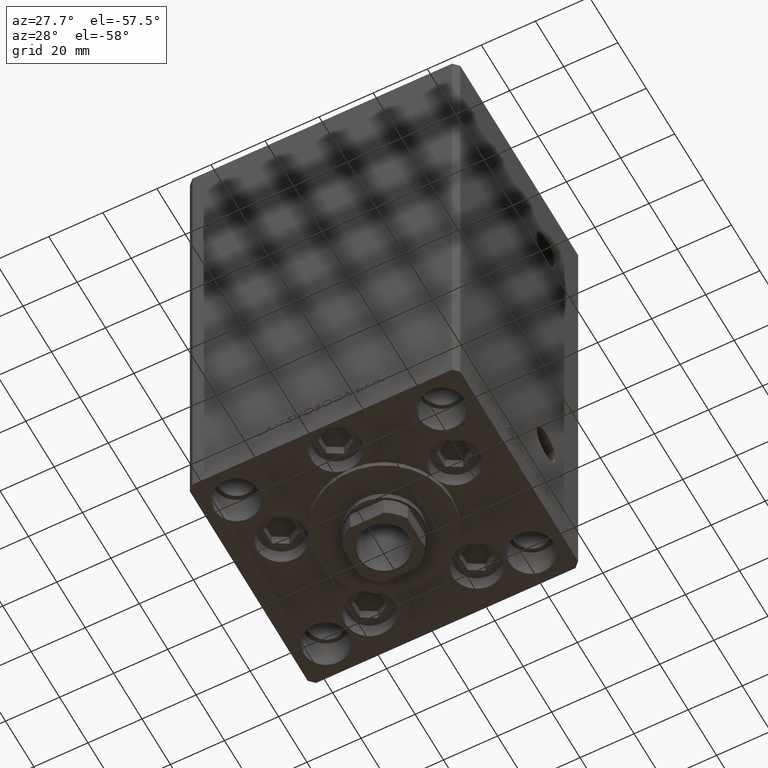
[diagram: clean part render]
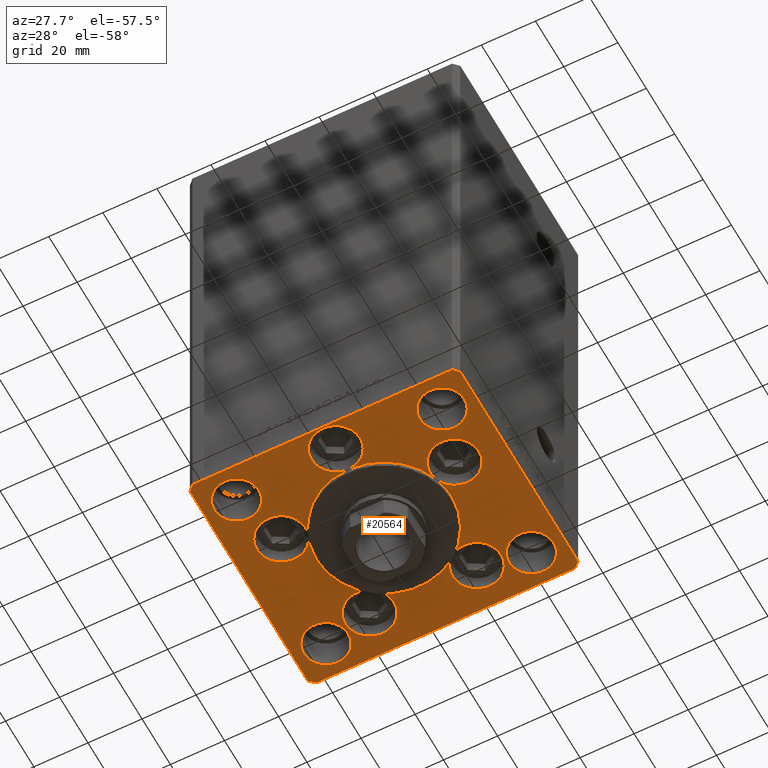
[diagram: same view with one face highlighted and labeled with its STEP entity id]
A machine part, auxiliary view. The second image highlights one B-rep face of the part: STEP entity #20564.
In plain terms, the highlighted planar face has unit normal (0, 0, -1).
Its self-contained STEP definition (entity closure, byte-faithful):
#121 = PLANE ( 'NONE',  #38288 ) ;
#170 = EDGE_CURVE ( 'NONE', #13335, #32109, #27916, .T. ) ;
#311 = CARTESIAN_POINT ( 'NONE',  ( 14.57402977045128623, 20.31249999999998579, 0.000000000000000000 ) ) ;
#484 = EDGE_CURVE ( 'NONE', #26941, #23557, #24707, .T. ) ;
#623 = FACE_BOUND ( 'NONE', #6814, .T. ) ;
#727 = AXIS2_PLACEMENT_3D ( 'NONE', #815, #39679, #16107 ) ;
#815 = CARTESIAN_POINT ( 'NONE',  ( 0.000000000000000000, -6.938893903907228378E-15, 0.000000000000000000 ) ) ;
#858 = VERTEX_POINT ( 'NONE', #15331 ) ;
#1037 = EDGE_CURVE ( 'NONE', #7361, #41626, #12675, .T. ) ;
#1084 = CARTESIAN_POINT ( 'NONE',  ( 10.82068048781375147, 27.62499999999998934, 0.000000000000000000 ) ) ;
#1092 = DIRECTION ( 'NONE',  ( 0.000000000000000000, 0.000000000000000000, 1.000000000000000000 ) ) ;
#1310 = VERTEX_POINT ( 'NONE', #3853 ) ;
#1329 = EDGE_CURVE ( 'NONE', #30418, #31856, #37559, .T. ) ;
#1381 = CIRCLE ( 'NONE', #27817, 9.000000000000001776 ) ;
#1537 = DIRECTION ( 'NONE',  ( 1.000000000000000000, 0.000000000000000000, 0.000000000000000000 ) ) ;
#1788 = DIRECTION ( 'NONE',  ( 0.000000000000000000, 1.000000000000000000, 0.000000000000000000 ) ) ;
#2157 = CARTESIAN_POINT ( 'NONE',  ( -48.00000000000000711, -43.50000000000002842, 0.000000000000000000 ) ) ;
#2173 = DIRECTION ( 'NONE',  ( 1.000000000000000000, 0.000000000000000000, 0.000000000000000000 ) ) ;
#2362 = DIRECTION ( 'NONE',  ( 0.000000000000000000, 0.000000000000000000, 1.000000000000000000 ) ) ;
#2425 = EDGE_CURVE ( 'NONE', #1310, #45627, #45580, .T. ) ;
#2619 = ORIENTED_EDGE ( 'NONE', *, *, #49554, .T. ) ;
#3023 = DIRECTION ( 'NONE',  ( 0.000000000000000000, 0.000000000000000000, 1.000000000000000000 ) ) ;
#3178 = CARTESIAN_POINT ( 'NONE',  ( -38.00000000000000000, 31.50000000000000000, 0.000000000000000000 ) ) ;
#3411 = CARTESIAN_POINT ( 'NONE',  ( 0.000000000000000000, -34.00000000000000000, 0.000000000000000000 ) ) ;
#3466 = VERTEX_POINT ( 'NONE', #45871 ) ;
#3620 = EDGE_CURVE ( 'NONE', #21723, #40940, #25762, .T. ) ;
#3853 = CARTESIAN_POINT ( 'NONE',  ( -28.82068048781374969, 27.62499999999998934, 0.000000000000000000 ) ) ;
#4018 = CARTESIAN_POINT ( 'NONE',  ( -14.57402977045128978, 20.31249999999999289, 0.000000000000000000 ) ) ;
#4030 = AXIS2_PLACEMENT_3D ( 'NONE', #3178, #29787, #13071 ) ;
#4208 = DIRECTION ( 'NONE',  ( 1.000000000000000000, 0.000000000000000000, 0.000000000000000000 ) ) ;
#4339 = CARTESIAN_POINT ( 'NONE',  ( 25.00000000000000000, -3.877276906038844941E-15, 0.000000000000000000 ) ) ;
#4352 = DIRECTION ( 'NONE',  ( 0.000000000000000000, 0.000000000000000000, 1.000000000000000000 ) ) ;
#4465 = ORIENTED_EDGE ( 'NONE', *, *, #35065, .F. ) ;
#4828 = CARTESIAN_POINT ( 'NONE',  ( 29.75000000000001066, -31.50000000000000711, 0.000000000000000000 ) ) ;
#4853 = CARTESIAN_POINT ( 'NONE',  ( 38.00000000000000711, -31.50000000000000711, 0.000000000000000000 ) ) ;
#5016 = CARTESIAN_POINT ( 'NONE',  ( -50.00000000000000000, -41.50000000000004263, 0.000000000000000000 ) ) ;
#5026 = EDGE_LOOP ( 'NONE', ( #24011, #29566 ) ) ;
#5066 = DIRECTION ( 'NONE',  ( 0.000000000000000000, 0.000000000000000000, 1.000000000000000000 ) ) ;
#5069 = EDGE_CURVE ( 'NONE', #40940, #34825, #28198, .T. ) ;
#5219 = ORIENTED_EDGE ( 'NONE', *, *, #11802, .F. ) ;
#5261 = CARTESIAN_POINT ( 'NONE',  ( -23.57022603955158502, -8.333333333333332149, 0.000000000000000000 ) ) ;
#5386 = EDGE_CURVE ( 'NONE', #8602, #11505, #16865, .T. ) ;
#5413 = EDGE_CURVE ( 'NONE', #42553, #26941, #32885, .T. ) ;
#5559 = CIRCLE ( 'NONE', #727, 25.00000000000000000 ) ;
#5695 = ORIENTED_EDGE ( 'NONE', *, *, #20351, .F. ) ;
#5754 = CIRCLE ( 'NONE', #16183, 9.000000000000000000 ) ;
#5768 = AXIS2_PLACEMENT_3D ( 'NONE', #32376, #44642, #14045 ) ;
#5913 = AXIS2_PLACEMENT_3D ( 'NONE', #41438, #10347, #15090 ) ;
#5976 = DIRECTION ( 'NONE',  ( 1.000000000000000000, 1.156482317317871331E-15, 0.000000000000000000 ) ) ;
#6206 = DIRECTION ( 'NONE',  ( 1.000000000000000000, 0.000000000000000000, 0.000000000000000000 ) ) ;
#6233 = CIRCLE ( 'NONE', #31780, 8.249999999999992895 ) ;
#6439 = CARTESIAN_POINT ( 'NONE',  ( 50.00000000000000000, -41.49999999999992895, 0.000000000000000000 ) ) ;
#6795 = AXIS2_PLACEMENT_3D ( 'NONE', #37397, #3023, #4208 ) ;
#6801 = CIRCLE ( 'NONE', #41253, 9.000000000000001776 ) ;
#6814 = EDGE_LOOP ( 'NONE', ( #14066, #48446, #33516, #46403, #39758, #44490, #16746, #38961, #37222, #21918, #30558, #18650, #8520, #5219, #17185, #44079, #14395, #33445, #4465, #13281, #49303, #5695 ) ) ;
#6931 = DIRECTION ( 'NONE',  ( 0.000000000000000000, 0.000000000000000000, 1.000000000000000000 ) ) ;
#7022 = AXIS2_PLACEMENT_3D ( 'NONE', #35903, #5066, #24135 ) ;
#7361 = VERTEX_POINT ( 'NONE', #36221 ) ;
#7660 = DIRECTION ( 'NONE',  ( 0.000000000000000000, 0.000000000000000000, 1.000000000000000000 ) ) ;
#7958 = CARTESIAN_POINT ( 'NONE',  ( -9.000000000000000000, -34.00000000000000000, 0.000000000000000000 ) ) ;
#8022 = DIRECTION ( 'NONE',  ( 1.000000000000000000, 0.000000000000000000, 0.000000000000000000 ) ) ;
#8520 = ORIENTED_EDGE ( 'NONE', *, *, #29264, .F. ) ;
#8602 = VERTEX_POINT ( 'NONE', #15593 ) ;
#8619 = DIRECTION ( 'NONE',  ( -1.000000000000000000, -2.891205793294678326E-16, 0.000000000000000000 ) ) ;
#8717 = DIRECTION ( 'NONE',  ( 0.000000000000000000, 0.000000000000000000, 1.000000000000000000 ) ) ;
#9262 = VERTEX_POINT ( 'NONE', #36456 ) ;
#9496 = CIRCLE ( 'NONE', #44766, 9.000000000000001776 ) ;
#9511 = ORIENTED_EDGE ( 'NONE', *, *, #41630, .F. ) ;
#9924 = EDGE_CURVE ( 'NONE', #22101, #1310, #5754, .T. ) ;
#10236 = CARTESIAN_POINT ( 'NONE',  ( 0.000000000000000000, -6.938893903907228378E-15, 0.000000000000000000 ) ) ;
#10347 = DIRECTION ( 'NONE',  ( 0.000000000000000000, 0.000000000000000000, 1.000000000000000000 ) ) ;
#10646 = DIRECTION ( 'NONE',  ( 0.000000000000000000, 0.000000000000000000, 1.000000000000000000 ) ) ;
#10709 = VERTEX_POINT ( 'NONE', #7958 ) ;
#11033 = CIRCLE ( 'NONE', #7022, 8.250000000000000000 ) ;
#11140 = DIRECTION ( 'NONE',  ( 0.000000000000000000, 0.000000000000000000, 1.000000000000000000 ) ) ;
#11372 = VERTEX_POINT ( 'NONE', #4828 ) ;
#11415 = FACE_BOUND ( 'NONE', #13766, .T. ) ;
#11463 = CIRCLE ( 'NONE', #23506, 8.249999999999992895 ) ;
#11505 = VERTEX_POINT ( 'NONE', #30362 ) ;
#11565 = EDGE_CURVE ( 'NONE', #39714, #7361, #27481, .T. ) ;
#11718 = DIRECTION ( 'NONE',  ( 1.000000000000000000, 0.000000000000000000, 0.000000000000000000 ) ) ;
#11802 = EDGE_CURVE ( 'NONE', #41626, #9262, #21865, .T. ) ;
#12170 = CARTESIAN_POINT ( 'NONE',  ( 0.000000000000000000, 0.000000000000000000, 0.000000000000000000 ) ) ;
#12194 = AXIS2_PLACEMENT_3D ( 'NONE', #25841, #49499, #18804 ) ;
#12197 = EDGE_CURVE ( 'NONE', #34366, #3466, #14635, .T. ) ;
#12223 = CARTESIAN_POINT ( 'NONE',  ( -48.00000000000000000, 43.49999999999997158, 0.000000000000000000 ) ) ;
#12414 = FACE_BOUND ( 'NONE', #36497, .T. ) ;
#12550 = ORIENTED_EDGE ( 'NONE', *, *, #46331, .F. ) ;
#12616 = CARTESIAN_POINT ( 'NONE',  ( 0.000000000000000000, -6.938893903907228378E-15, 0.000000000000000000 ) ) ;
#12664 = VERTEX_POINT ( 'NONE', #23591 ) ;
#12675 = CIRCLE ( 'NONE', #47127, 9.000000000000001776 ) ;
#13065 = CARTESIAN_POINT ( 'NONE',  ( -29.75000000000000711, -31.50000000000000711, 0.000000000000000000 ) ) ;
#13071 = DIRECTION ( 'NONE',  ( 1.000000000000000000, 0.000000000000000000, 0.000000000000000000 ) ) ;
#13281 = ORIENTED_EDGE ( 'NONE', *, *, #2425, .F. ) ;
#13335 = VERTEX_POINT ( 'NONE', #16439 ) ;
#13484 = VECTOR ( 'NONE', #38052, 1000.000000000000000 ) ;
#13730 = DIRECTION ( 'NONE',  ( 0.000000000000000000, 0.000000000000000000, 1.000000000000000000 ) ) ;
#13766 = EDGE_LOOP ( 'NONE', ( #12550, #30796 ) ) ;
#13925 = EDGE_CURVE ( 'NONE', #30922, #858, #33816, .T. ) ;
#14045 = DIRECTION ( 'NONE',  ( 1.000000000000000000, 0.000000000000000000, 0.000000000000000000 ) ) ;
#14066 = ORIENTED_EDGE ( 'NONE', *, *, #35139, .F. ) ;
#14277 = VECTOR ( 'NONE', #34929, 1000.000000000000000 ) ;
#14384 = VECTOR ( 'NONE', #25255, 999.9999999999998863 ) ;
#14395 = ORIENTED_EDGE ( 'NONE', *, *, #45474, .F. ) ;
#14443 = VERTEX_POINT ( 'NONE', #38922 ) ;
#14635 = CIRCLE ( 'NONE', #23493, 8.250000000000000000 ) ;
#15090 = DIRECTION ( 'NONE',  ( 1.000000000000000000, 0.000000000000000000, 0.000000000000000000 ) ) ;
#15331 = CARTESIAN_POINT ( 'NONE',  ( 46.25000000000000000, 31.50000000000000000, 0.000000000000000000 ) ) ;
#15447 = DIRECTION ( 'NONE',  ( 1.000000000000000000, 0.000000000000000000, 0.000000000000000000 ) ) ;
#15469 = CARTESIAN_POINT ( 'NONE',  ( -41.05550741379015989, -11.33333333333332682, 0.000000000000000000 ) ) ;
#15593 = CARTESIAN_POINT ( 'NONE',  ( -46.25000000000000000, 31.50000000000000000, 0.000000000000000000 ) ) ;
#15755 = CARTESIAN_POINT ( 'NONE',  ( 0.000000000000000000, -34.00000000000000000, 0.000000000000000000 ) ) ;
#15932 = AXIS2_PLACEMENT_3D ( 'NONE', #45507, #11140, #26449 ) ;
#15968 = AXIS2_PLACEMENT_3D ( 'NONE', #35891, #36390, #1537 ) ;
#16107 = DIRECTION ( 'NONE',  ( 1.000000000000000000, 0.000000000000000000, 0.000000000000000000 ) ) ;
#16173 = DIRECTION ( 'NONE',  ( -0.000000000000000000, 0.000000000000000000, 1.000000000000000000 ) ) ;
#16183 = AXIS2_PLACEMENT_3D ( 'NONE', #45340, #48360, #41087 ) ;
#16439 = CARTESIAN_POINT ( 'NONE',  ( -50.00000000000000711, 41.49999999999999289, 0.000000000000000000 ) ) ;
#16746 = ORIENTED_EDGE ( 'NONE', *, *, #22772, .F. ) ;
#16865 = CIRCLE ( 'NONE', #4030, 8.250000000000000000 ) ;
#16868 = DIRECTION ( 'NONE',  ( 0.000000000000000000, 0.000000000000000000, 1.000000000000000000 ) ) ;
#16890 = CARTESIAN_POINT ( 'NONE',  ( 47.99999999999999289, 43.50000000000000000, 0.000000000000000000 ) ) ;
#17092 = AXIS2_PLACEMENT_3D ( 'NONE', #15755, #46361, #2173 ) ;
#17185 = ORIENTED_EDGE ( 'NONE', *, *, #1037, .F. ) ;
#17523 = DIRECTION ( 'NONE',  ( 1.000000000000000000, 0.000000000000000000, 0.000000000000000000 ) ) ;
#17798 = CIRCLE ( 'NONE', #12194, 25.00000000000000000 ) ;
#18002 = EDGE_CURVE ( 'NONE', #30418, #12664, #1381, .T. ) ;
#18028 = DIRECTION ( 'NONE',  ( 0.000000000000000000, 0.000000000000000000, 1.000000000000000000 ) ) ;
#18471 = CARTESIAN_POINT ( 'NONE',  ( -25.00000000000000000, -6.938893903907228378E-15, 0.000000000000000000 ) ) ;
#18650 = ORIENTED_EDGE ( 'NONE', *, *, #36703, .F. ) ;
#18655 = AXIS2_PLACEMENT_3D ( 'NONE', #26612, #42396, #8022 ) ;
#18804 = DIRECTION ( 'NONE',  ( 1.000000000000000000, 0.000000000000000000, 0.000000000000000000 ) ) ;
#19958 = CARTESIAN_POINT ( 'NONE',  ( 0.000000000000000000, -6.938893903907228378E-15, 0.000000000000000000 ) ) ;
#20082 = EDGE_CURVE ( 'NONE', #11505, #8602, #11033, .T. ) ;
#20351 = EDGE_CURVE ( 'NONE', #45627, #22101, #48665, .T. ) ;
#20420 = EDGE_CURVE ( 'NONE', #44937, #25517, #29064, .T. ) ;
#20564 = ADVANCED_FACE ( 'NONE', ( #623, #31227, #46527, #12414, #11415, #34479 ), #121, .T. ) ;
#21057 = CARTESIAN_POINT ( 'NONE',  ( -10.82068048781375147, 27.62499999999998934, 0.000000000000000000 ) ) ;
#21154 = CARTESIAN_POINT ( 'NONE',  ( -48.00000000000000000, 43.49999999999997158, 0.000000000000000000 ) ) ;
#21171 = ORIENTED_EDGE ( 'NONE', *, *, #41964, .T. ) ;
#21192 = CARTESIAN_POINT ( 'NONE',  ( 19.82068048781374969, 27.62499999999998934, 0.000000000000000000 ) ) ;
#21293 = DIRECTION ( 'NONE',  ( 1.000000000000000000, 0.000000000000000000, 0.000000000000000000 ) ) ;
#21466 = EDGE_CURVE ( 'NONE', #25517, #41918, #31288, .T. ) ;
#21486 = CARTESIAN_POINT ( 'NONE',  ( -50.00000000000000000, -41.50000000000004263, 0.000000000000000000 ) ) ;
#21723 = VERTEX_POINT ( 'NONE', #39932 ) ;
#21865 = CIRCLE ( 'NONE', #37879, 25.00000000000000000 ) ;
#21918 = ORIENTED_EDGE ( 'NONE', *, *, #26626, .F. ) ;
#22055 = CARTESIAN_POINT ( 'NONE',  ( 28.82068048781374969, 27.62499999999998934, 0.000000000000000000 ) ) ;
#22101 = VERTEX_POINT ( 'NONE', #21057 ) ;
#22365 = EDGE_CURVE ( 'NONE', #14443, #9262, #23944, .T. ) ;
#22772 = EDGE_CURVE ( 'NONE', #30687, #30418, #9496, .T. ) ;
#23493 = AXIS2_PLACEMENT_3D ( 'NONE', #29752, #7660, #34004 ) ;
#23506 = AXIS2_PLACEMENT_3D ( 'NONE', #25955, #10646, #41248 ) ;
#23557 = VERTEX_POINT ( 'NONE', #311 ) ;
#23567 = EDGE_CURVE ( 'NONE', #31856, #23557, #5559, .T. ) ;
#23591 = CARTESIAN_POINT ( 'NONE',  ( 23.05550741379015633, -11.33333333333332682, 0.000000000000000000 ) ) ;
#23632 = LINE ( 'NONE', #46948, #33873 ) ;
#23944 = CIRCLE ( 'NONE', #34343, 9.000000000000000000 ) ;
#24011 = ORIENTED_EDGE ( 'NONE', *, *, #38507, .F. ) ;
#24089 = VERTEX_POINT ( 'NONE', #37580 ) ;
#24135 = DIRECTION ( 'NONE',  ( 1.000000000000000000, 0.000000000000000000, 0.000000000000000000 ) ) ;
#24304 = CARTESIAN_POINT ( 'NONE',  ( 32.05550741379015989, -11.33333333333332860, 0.000000000000000000 ) ) ;
#24441 = CIRCLE ( 'NONE', #31657, 8.250000000000000000 ) ;
#24707 = CIRCLE ( 'NONE', #39922, 8.999999999999998224 ) ;
#24842 = CARTESIAN_POINT ( 'NONE',  ( 19.82068048781374969, 27.62499999999998934, 0.000000000000000000 ) ) ;
#24865 = EDGE_LOOP ( 'NONE', ( #44677, #44195 ) ) ;
#24976 = DIRECTION ( 'NONE',  ( 0.000000000000000000, 0.000000000000000000, 1.000000000000000000 ) ) ;
#25255 = DIRECTION ( 'NONE',  ( -0.7071067811865512365, 0.7071067811865439090, 0.000000000000000000 ) ) ;
#25306 = CARTESIAN_POINT ( 'NONE',  ( -38.00000000000000711, -31.50000000000000711, 0.000000000000000000 ) ) ;
#25324 = DIRECTION ( 'NONE',  ( 0.000000000000000000, 0.000000000000000000, 1.000000000000000000 ) ) ;
#25517 = VERTEX_POINT ( 'NONE', #46544 ) ;
#25762 = LINE ( 'NONE', #41060, #14384 ) ;
#25802 = ORIENTED_EDGE ( 'NONE', *, *, #21466, .T. ) ;
#25841 = CARTESIAN_POINT ( 'NONE',  ( 0.000000000000000000, -6.938893903907228378E-15, 0.000000000000000000 ) ) ;
#25955 = CARTESIAN_POINT ( 'NONE',  ( 38.00000000000000711, -31.50000000000000711, 0.000000000000000000 ) ) ;
#26011 = DIRECTION ( 'NONE',  ( 0.000000000000000000, 0.000000000000000000, 1.000000000000000000 ) ) ;
#26036 = VECTOR ( 'NONE', #48085, 1000.000000000000000 ) ;
#26449 = DIRECTION ( 'NONE',  ( 1.000000000000000000, 0.000000000000000000, 0.000000000000000000 ) ) ;
#26533 = DIRECTION ( 'NONE',  ( 0.000000000000000000, 0.000000000000000000, 1.000000000000000000 ) ) ;
#26612 = CARTESIAN_POINT ( 'NONE',  ( -32.05550741379015989, -11.33333333333332860, 0.000000000000000000 ) ) ;
#26621 = CIRCLE ( 'NONE', #5768, 25.00000000000000000 ) ;
#26626 = EDGE_CURVE ( 'NONE', #9262, #30418, #42520, .T. ) ;
#26941 = VERTEX_POINT ( 'NONE', #1084 ) ;
#27081 = VECTOR ( 'NONE', #42836, 1000.000000000000114 ) ;
#27378 = EDGE_LOOP ( 'NONE', ( #21171, #32732, #25802, #32178, #37399, #37025, #2619, #40874 ) ) ;
#27481 = CIRCLE ( 'NONE', #18655, 9.000000000000001776 ) ;
#27483 = DIRECTION ( 'NONE',  ( 1.000000000000000000, 0.000000000000000000, 0.000000000000000000 ) ) ;
#27562 = CIRCLE ( 'NONE', #5913, 8.250000000000000000 ) ;
#27817 = AXIS2_PLACEMENT_3D ( 'NONE', #24304, #13730, #6206 ) ;
#27887 = VECTOR ( 'NONE', #5976, 1000.000000000000000 ) ;
#27895 = CIRCLE ( 'NONE', #47000, 25.00000000000000000 ) ;
#27916 = LINE ( 'NONE', #35913, #14277 ) ;
#28089 = DIRECTION ( 'NONE',  ( 1.000000000000000000, 0.000000000000000000, 0.000000000000000000 ) ) ;
#28198 = LINE ( 'NONE', #16890, #29651 ) ;
#28945 = CARTESIAN_POINT ( 'NONE',  ( 29.74999999999999645, 31.50000000000000000, 0.000000000000000000 ) ) ;
#29050 = CIRCLE ( 'NONE', #17092, 9.000000000000000000 ) ;
#29064 = LINE ( 'NONE', #49045, #27887 ) ;
#29264 = EDGE_CURVE ( 'NONE', #9262, #10709, #48162, .T. ) ;
#29275 = VERTEX_POINT ( 'NONE', #18471 ) ;
#29518 = DIRECTION ( 'NONE',  ( 1.000000000000000000, 0.000000000000000000, 0.000000000000000000 ) ) ;
#29566 = ORIENTED_EDGE ( 'NONE', *, *, #13925, .F. ) ;
#29651 = VECTOR ( 'NONE', #8619, 1000.000000000000000 ) ;
#29752 = CARTESIAN_POINT ( 'NONE',  ( -38.00000000000000711, -31.50000000000000711, 0.000000000000000000 ) ) ;
#29787 = DIRECTION ( 'NONE',  ( 0.000000000000000000, 0.000000000000000000, 1.000000000000000000 ) ) ;
#30160 = AXIS2_PLACEMENT_3D ( 'NONE', #36656, #16868, #47956 ) ;
#30288 = CARTESIAN_POINT ( 'NONE',  ( 32.05550741379015989, -11.33333333333332860, 0.000000000000000000 ) ) ;
#30362 = CARTESIAN_POINT ( 'NONE',  ( -29.75000000000000000, 31.50000000000000000, 0.000000000000000000 ) ) ;
#30418 = VERTEX_POINT ( 'NONE', #34209 ) ;
#30558 = ORIENTED_EDGE ( 'NONE', *, *, #22365, .F. ) ;
#30687 = VERTEX_POINT ( 'NONE', #42929 ) ;
#30796 = ORIENTED_EDGE ( 'NONE', *, *, #37214, .F. ) ;
#30922 = VERTEX_POINT ( 'NONE', #28945 ) ;
#30984 = DIRECTION ( 'NONE',  ( 1.000000000000000000, 0.000000000000000000, 0.000000000000000000 ) ) ;
#31227 = FACE_BOUND ( 'NONE', #5026, .T. ) ;
#31274 = LINE ( 'NONE', #12223, #13484 ) ;
#31288 = LINE ( 'NONE', #46594, #27081 ) ;
#31591 = CARTESIAN_POINT ( 'NONE',  ( -19.82068048781374969, 27.62499999999998934, 0.000000000000000000 ) ) ;
#31657 = AXIS2_PLACEMENT_3D ( 'NONE', #25306, #18028, #21293 ) ;
#31780 = AXIS2_PLACEMENT_3D ( 'NONE', #4853, #4352, #46986 ) ;
#31856 = VERTEX_POINT ( 'NONE', #4339 ) ;
#32109 = VERTEX_POINT ( 'NONE', #5016 ) ;
#32178 = ORIENTED_EDGE ( 'NONE', *, *, #35978, .T. ) ;
#32376 = CARTESIAN_POINT ( 'NONE',  ( 0.000000000000000000, -6.938893903907228378E-15, 0.000000000000000000 ) ) ;
#32440 = CIRCLE ( 'NONE', #6795, 8.999999999999998224 ) ;
#32681 = ORIENTED_EDGE ( 'NONE', *, *, #12197, .F. ) ;
#32732 = ORIENTED_EDGE ( 'NONE', *, *, #20420, .T. ) ;
#32885 = CIRCLE ( 'NONE', #39310, 8.999999999999998224 ) ;
#33445 = ORIENTED_EDGE ( 'NONE', *, *, #46275, .F. ) ;
#33516 = ORIENTED_EDGE ( 'NONE', *, *, #5413, .F. ) ;
#33786 = DIRECTION ( 'NONE',  ( 0.000000000000000000, 0.000000000000000000, 1.000000000000000000 ) ) ;
#33816 = CIRCLE ( 'NONE', #48253, 8.250000000000000000 ) ;
#33873 = VECTOR ( 'NONE', #1788, 1000.000000000000000 ) ;
#34004 = DIRECTION ( 'NONE',  ( 1.000000000000000000, 0.000000000000000000, 0.000000000000000000 ) ) ;
#34209 = CARTESIAN_POINT ( 'NONE',  ( 23.57022603955158502, -8.333333333333332149, 0.000000000000000000 ) ) ;
#34343 = AXIS2_PLACEMENT_3D ( 'NONE', #43085, #8717, #40796 ) ;
#34366 = VERTEX_POINT ( 'NONE', #13065 ) ;
#34479 = FACE_OUTER_BOUND ( 'NONE', #27378, .T. ) ;
#34748 = DIRECTION ( 'NONE',  ( 0.000000000000000000, 0.000000000000000000, 1.000000000000000000 ) ) ;
#34825 = VERTEX_POINT ( 'NONE', #21154 ) ;
#34929 = DIRECTION ( 'NONE',  ( 8.360113137237620037E-17, -1.000000000000000000, 0.000000000000000000 ) ) ;
#35059 = AXIS2_PLACEMENT_3D ( 'NONE', #31591, #42888, #28089 ) ;
#35065 = EDGE_CURVE ( 'NONE', #45627, #29275, #26621, .T. ) ;
#35139 = EDGE_CURVE ( 'NONE', #23557, #45627, #17798, .T. ) ;
#35891 = CARTESIAN_POINT ( 'NONE',  ( -19.82068048781374969, 27.62499999999998934, 0.000000000000000000 ) ) ;
#35903 = CARTESIAN_POINT ( 'NONE',  ( -38.00000000000000000, 31.50000000000000000, 0.000000000000000000 ) ) ;
#35913 = CARTESIAN_POINT ( 'NONE',  ( -50.00000000000000711, 41.49999999999999289, 0.000000000000000000 ) ) ;
#35978 = EDGE_CURVE ( 'NONE', #41918, #21723, #23632, .T. ) ;
#36221 = CARTESIAN_POINT ( 'NONE',  ( -23.05550741379015633, -11.33333333333332860, 0.000000000000000000 ) ) ;
#36261 = DIRECTION ( 'NONE',  ( 1.000000000000000000, 0.000000000000000000, 0.000000000000000000 ) ) ;
#36390 = DIRECTION ( 'NONE',  ( 0.000000000000000000, 0.000000000000000000, 1.000000000000000000 ) ) ;
#36456 = CARTESIAN_POINT ( 'NONE',  ( 0.000000000000000000, -25.00000000000000000, 0.000000000000000000 ) ) ;
#36497 = EDGE_LOOP ( 'NONE', ( #32681, #9511 ) ) ;
#36656 = CARTESIAN_POINT ( 'NONE',  ( -32.05550741379015989, -11.33333333333332860, 0.000000000000000000 ) ) ;
#36703 = EDGE_CURVE ( 'NONE', #10709, #14443, #29050, .T. ) ;
#36858 = DIRECTION ( 'NONE',  ( 1.000000000000000000, 0.000000000000000000, 0.000000000000000000 ) ) ;
#37025 = ORIENTED_EDGE ( 'NONE', *, *, #5069, .T. ) ;
#37214 = EDGE_CURVE ( 'NONE', #11372, #24089, #11463, .T. ) ;
#37222 = ORIENTED_EDGE ( 'NONE', *, *, #18002, .F. ) ;
#37397 = CARTESIAN_POINT ( 'NONE',  ( 19.82068048781374969, 27.62499999999998934, 0.000000000000000000 ) ) ;
#37399 = ORIENTED_EDGE ( 'NONE', *, *, #3620, .T. ) ;
#37559 = CIRCLE ( 'NONE', #15932, 25.00000000000000000 ) ;
#37580 = CARTESIAN_POINT ( 'NONE',  ( 46.25000000000000000, -31.50000000000000711, 0.000000000000000000 ) ) ;
#37879 = AXIS2_PLACEMENT_3D ( 'NONE', #10236, #40595, #17523 ) ;
#38052 = DIRECTION ( 'NONE',  ( -0.7071067811865536790, -0.7071067811865414665, 0.000000000000000000 ) ) ;
#38288 = AXIS2_PLACEMENT_3D ( 'NONE', #12170, #16173, #27483 ) ;
#38461 = DIRECTION ( 'NONE',  ( 1.000000000000000000, 0.000000000000000000, 0.000000000000000000 ) ) ;
#38507 = EDGE_CURVE ( 'NONE', #858, #30922, #27562, .T. ) ;
#38922 = CARTESIAN_POINT ( 'NONE',  ( 9.000000000000000000, -34.00000000000000000, 0.000000000000000000 ) ) ;
#38961 = ORIENTED_EDGE ( 'NONE', *, *, #42020, .F. ) ;
#39310 = AXIS2_PLACEMENT_3D ( 'NONE', #24842, #33786, #48588 ) ;
#39679 = DIRECTION ( 'NONE',  ( 0.000000000000000000, 0.000000000000000000, 1.000000000000000000 ) ) ;
#39714 = VERTEX_POINT ( 'NONE', #15469 ) ;
#39758 = ORIENTED_EDGE ( 'NONE', *, *, #23567, .F. ) ;
#39771 = DIRECTION ( 'NONE',  ( 1.000000000000000000, 0.000000000000000000, 0.000000000000000000 ) ) ;
#39922 = AXIS2_PLACEMENT_3D ( 'NONE', #21192, #2362, #39771 ) ;
#39932 = CARTESIAN_POINT ( 'NONE',  ( 50.00000000000000000, 41.50000000000000711, 0.000000000000000000 ) ) ;
#40595 = DIRECTION ( 'NONE',  ( 0.000000000000000000, 0.000000000000000000, 1.000000000000000000 ) ) ;
#40796 = DIRECTION ( 'NONE',  ( 1.000000000000000000, 0.000000000000000000, 0.000000000000000000 ) ) ;
#40874 = ORIENTED_EDGE ( 'NONE', *, *, #170, .T. ) ;
#40940 = VERTEX_POINT ( 'NONE', #48484 ) ;
#41060 = CARTESIAN_POINT ( 'NONE',  ( 50.00000000000000000, 41.50000000000000711, 0.000000000000000000 ) ) ;
#41087 = DIRECTION ( 'NONE',  ( 1.000000000000000000, 0.000000000000000000, 0.000000000000000000 ) ) ;
#41248 = DIRECTION ( 'NONE',  ( 1.000000000000000000, 0.000000000000000000, 0.000000000000000000 ) ) ;
#41253 = AXIS2_PLACEMENT_3D ( 'NONE', #42289, #6931, #15447 ) ;
#41438 = CARTESIAN_POINT ( 'NONE',  ( 38.00000000000000000, 31.50000000000000000, 0.000000000000000000 ) ) ;
#41626 = VERTEX_POINT ( 'NONE', #5261 ) ;
#41630 = EDGE_CURVE ( 'NONE', #3466, #34366, #24441, .T. ) ;
#41690 = AXIS2_PLACEMENT_3D ( 'NONE', #19958, #34748, #30984 ) ;
#41918 = VERTEX_POINT ( 'NONE', #6439 ) ;
#41964 = EDGE_CURVE ( 'NONE', #32109, #44937, #45064, .T. ) ;
#42020 = EDGE_CURVE ( 'NONE', #12664, #30687, #6801, .T. ) ;
#42289 = CARTESIAN_POINT ( 'NONE',  ( 32.05550741379015989, -11.33333333333332860, 0.000000000000000000 ) ) ;
#42396 = DIRECTION ( 'NONE',  ( 0.000000000000000000, 0.000000000000000000, 1.000000000000000000 ) ) ;
#42520 = CIRCLE ( 'NONE', #41690, 25.00000000000000000 ) ;
#42553 = VERTEX_POINT ( 'NONE', #22055 ) ;
#42836 = DIRECTION ( 'NONE',  ( 0.7071067811865474617, 0.7071067811865474617, 0.000000000000000000 ) ) ;
#42888 = DIRECTION ( 'NONE',  ( 0.000000000000000000, 0.000000000000000000, 1.000000000000000000 ) ) ;
#42929 = CARTESIAN_POINT ( 'NONE',  ( 41.05550741379015989, -11.33333333333332860, 0.000000000000000000 ) ) ;
#43085 = CARTESIAN_POINT ( 'NONE',  ( 0.000000000000000000, -34.00000000000000000, 0.000000000000000000 ) ) ;
#43644 = CIRCLE ( 'NONE', #30160, 9.000000000000001776 ) ;
#44079 = ORIENTED_EDGE ( 'NONE', *, *, #11565, .F. ) ;
#44195 = ORIENTED_EDGE ( 'NONE', *, *, #5386, .F. ) ;
#44280 = CARTESIAN_POINT ( 'NONE',  ( 38.00000000000000000, 31.50000000000000000, 0.000000000000000000 ) ) ;
#44386 = CARTESIAN_POINT ( 'NONE',  ( -32.05550741379015989, -11.33333333333332860, 0.000000000000000000 ) ) ;
#44490 = ORIENTED_EDGE ( 'NONE', *, *, #1329, .F. ) ;
#44642 = DIRECTION ( 'NONE',  ( 0.000000000000000000, 0.000000000000000000, 1.000000000000000000 ) ) ;
#44677 = ORIENTED_EDGE ( 'NONE', *, *, #20082, .F. ) ;
#44766 = AXIS2_PLACEMENT_3D ( 'NONE', #30288, #26533, #11718 ) ;
#44852 = EDGE_CURVE ( 'NONE', #23557, #42553, #32440, .T. ) ;
#44937 = VERTEX_POINT ( 'NONE', #2157 ) ;
#45064 = LINE ( 'NONE', #21486, #26036 ) ;
#45340 = CARTESIAN_POINT ( 'NONE',  ( -19.82068048781374969, 27.62499999999998934, 0.000000000000000000 ) ) ;
#45474 = EDGE_CURVE ( 'NONE', #41626, #39714, #43644, .T. ) ;
#45507 = CARTESIAN_POINT ( 'NONE',  ( 0.000000000000000000, -6.938893903907228378E-15, 0.000000000000000000 ) ) ;
#45580 = CIRCLE ( 'NONE', #15968, 9.000000000000000000 ) ;
#45627 = VERTEX_POINT ( 'NONE', #4018 ) ;
#45871 = CARTESIAN_POINT ( 'NONE',  ( -46.25000000000000711, -31.50000000000000711, 0.000000000000000000 ) ) ;
#46275 = EDGE_CURVE ( 'NONE', #29275, #41626, #27895, .T. ) ;
#46331 = EDGE_CURVE ( 'NONE', #24089, #11372, #6233, .T. ) ;
#46361 = DIRECTION ( 'NONE',  ( 0.000000000000000000, 0.000000000000000000, 1.000000000000000000 ) ) ;
#46403 = ORIENTED_EDGE ( 'NONE', *, *, #44852, .F. ) ;
#46527 = FACE_BOUND ( 'NONE', #24865, .T. ) ;
#46544 = CARTESIAN_POINT ( 'NONE',  ( 48.00000000000000711, -43.49999999999992184, 0.000000000000000000 ) ) ;
#46594 = CARTESIAN_POINT ( 'NONE',  ( 48.00000000000000711, -43.49999999999992184, 0.000000000000000000 ) ) ;
#46599 = AXIS2_PLACEMENT_3D ( 'NONE', #3411, #26011, #29518 ) ;
#46948 = CARTESIAN_POINT ( 'NONE',  ( 50.00000000000000000, -41.49999999999992895, 0.000000000000000000 ) ) ;
#46986 = DIRECTION ( 'NONE',  ( 1.000000000000000000, 0.000000000000000000, 0.000000000000000000 ) ) ;
#47000 = AXIS2_PLACEMENT_3D ( 'NONE', #12616, #1092, #38461 ) ;
#47127 = AXIS2_PLACEMENT_3D ( 'NONE', #44386, #25324, #36858 ) ;
#47956 = DIRECTION ( 'NONE',  ( 1.000000000000000000, 0.000000000000000000, 0.000000000000000000 ) ) ;
#48085 = DIRECTION ( 'NONE',  ( 0.7071067811865487940, -0.7071067811865463515, 0.000000000000000000 ) ) ;
#48162 = CIRCLE ( 'NONE', #46599, 9.000000000000000000 ) ;
#48253 = AXIS2_PLACEMENT_3D ( 'NONE', #44280, #24976, #36261 ) ;
#48360 = DIRECTION ( 'NONE',  ( 0.000000000000000000, 0.000000000000000000, 1.000000000000000000 ) ) ;
#48446 = ORIENTED_EDGE ( 'NONE', *, *, #484, .F. ) ;
#48484 = CARTESIAN_POINT ( 'NONE',  ( 47.99999999999999289, 43.50000000000000000, 0.000000000000000000 ) ) ;
#48588 = DIRECTION ( 'NONE',  ( 1.000000000000000000, 0.000000000000000000, 0.000000000000000000 ) ) ;
#48665 = CIRCLE ( 'NONE', #35059, 9.000000000000000000 ) ;
#49045 = CARTESIAN_POINT ( 'NONE',  ( -48.00000000000000711, -43.50000000000002842, 0.000000000000000000 ) ) ;
#49303 = ORIENTED_EDGE ( 'NONE', *, *, #9924, .F. ) ;
#49499 = DIRECTION ( 'NONE',  ( 0.000000000000000000, 0.000000000000000000, 1.000000000000000000 ) ) ;
#49554 = EDGE_CURVE ( 'NONE', #34825, #13335, #31274, .T. ) ;